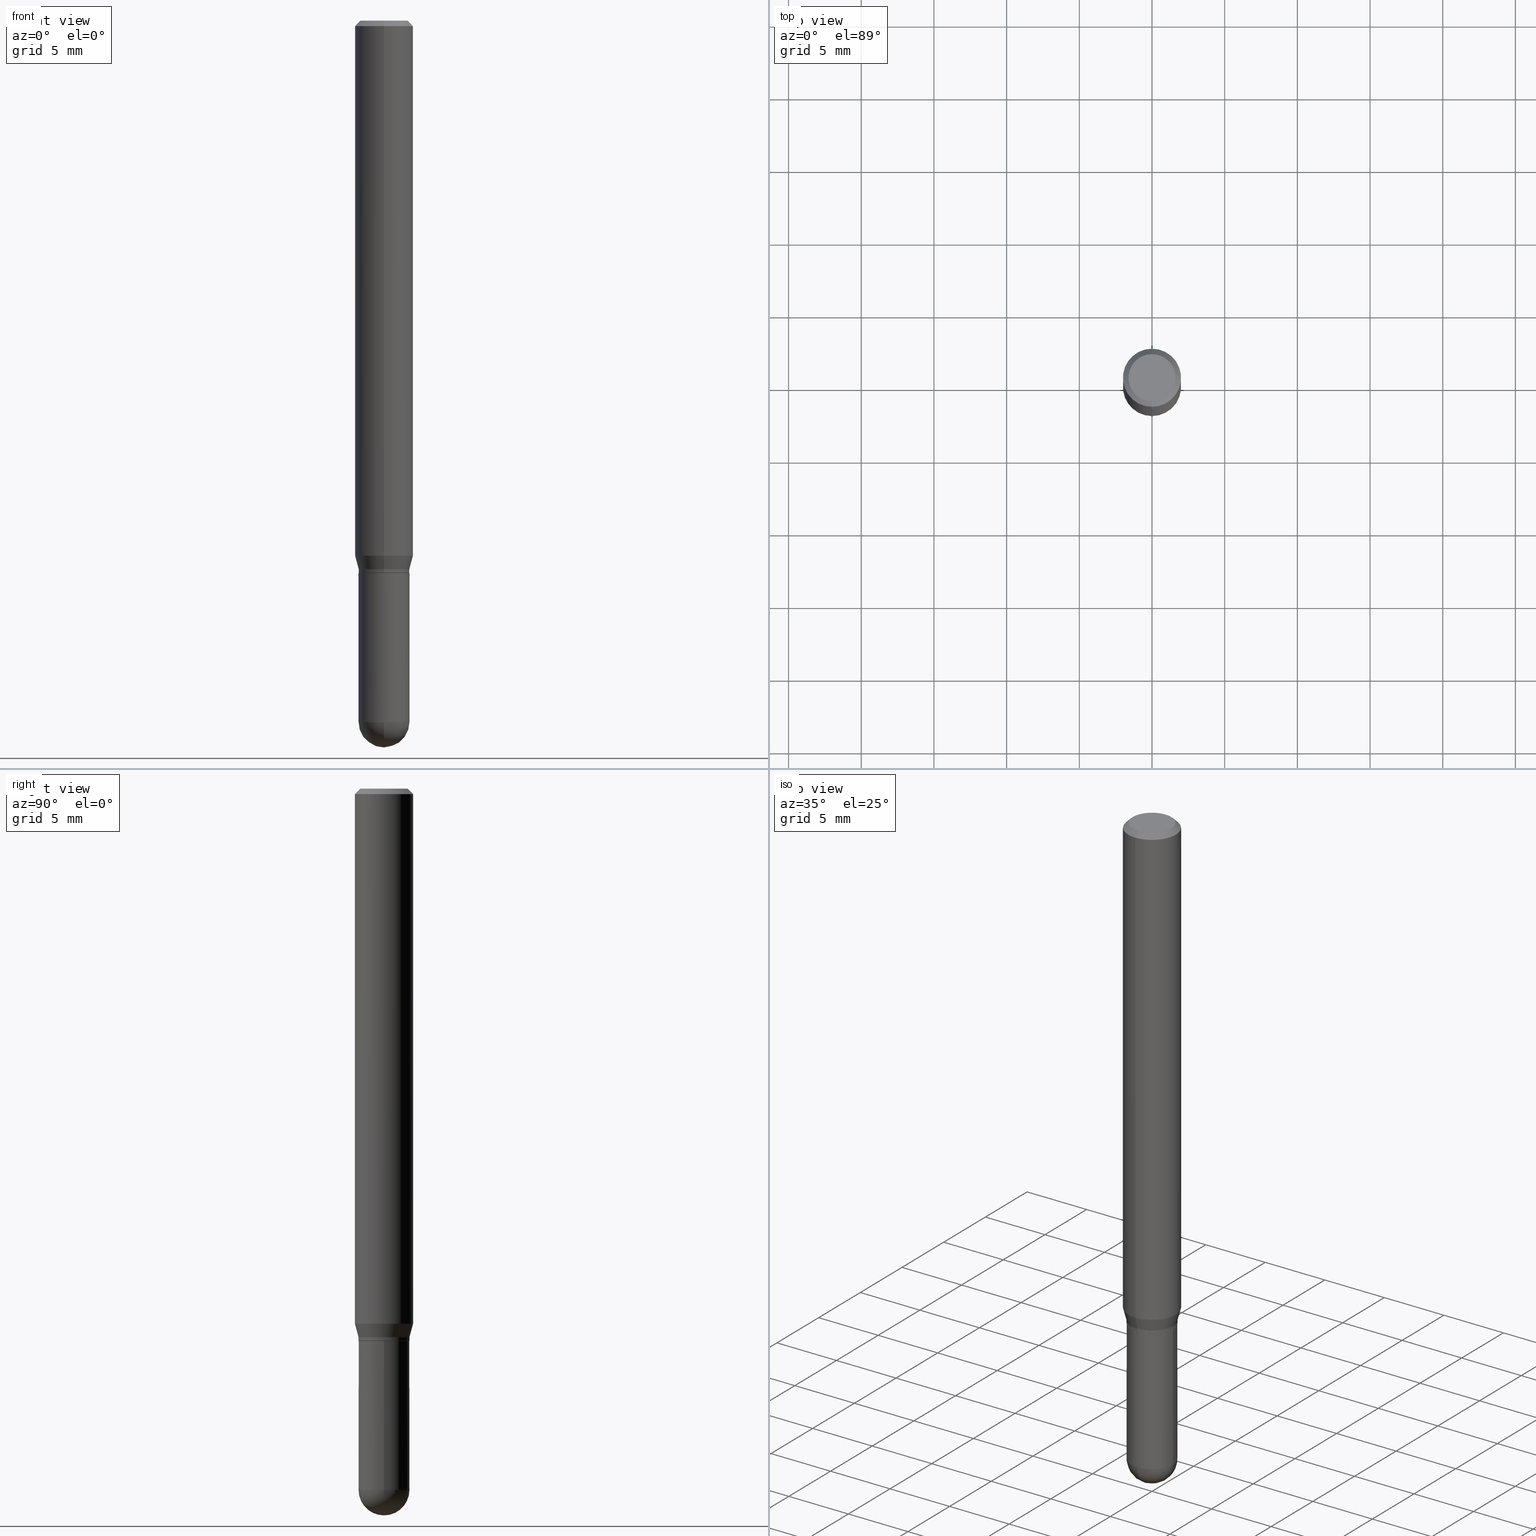
[diagram: canonical four-view strip — front | top / right | iso, engineering-drawing reading convention]
A machine part, canonical four-view strip (front | top / right | iso — engineering-drawing reading convention). The complete STEP part file that produces these views, byte-faithful:
ISO-10303-21;
HEADER;
FILE_DESCRIPTION (( 'STEP AP203' ),
    '1' );
FILE_NAME ('48825.STEP',
    '2024-03-08T13:24:39',
    ( '' ),
    ( '' ),
    'SwSTEP 2.0',
    'SolidWorks 2023',
    '' );
FILE_SCHEMA (( 'CONFIG_CONTROL_DESIGN' ));
ENDSEC;

DATA;
#1 = ORIENTED_EDGE ( 'NONE', *, *, #117, .F. ) ;
#2 = VECTOR ( 'NONE', #159, 39.37007874015748143 ) ;
#3 = DIRECTION ( 'NONE',  ( -2.445433841803367524E-29, 3.491531409827887808E-15, 1.000000000000000000 ) ) ;
#4 = FACE_OUTER_BOUND ( 'NONE', #408, .T. ) ;
#5 = EDGE_LOOP ( 'NONE', ( #330, #377, #357, #467 ) ) ;
#6 = CARTESIAN_POINT ( 'NONE',  ( 4.895639449387433642E-16, 0.06889999999999453506, -1.486100000000000199 ) ) ;
#7 = ORIENTED_EDGE ( 'NONE', *, *, #486, .T. ) ;
#8 = CIRCLE ( 'NONE', #425, 0.06890000000000007230 ) ;
#9 = CONICAL_SURFACE ( 'NONE', #314, 0.06889999999999972535, 0.2617993877991494078 ) ;
#10 = APPROVAL_PERSON_ORGANIZATION ( #36, #28, #401 ) ;
#11 = DIRECTION ( 'NONE',  ( 1.000000000000000000, -6.982962677686273021E-15, 0.000000000000000000 ) ) ;
#12 = DIRECTION ( 'NONE',  ( 2.445433841803367524E-29, -3.491531409827887808E-15, -1.000000000000000000 ) ) ;
#13 = ORIENTED_EDGE ( 'NONE', *, *, #289, .T. ) ;
#14 = DIRECTION ( 'NONE',  ( -2.445433841803367524E-29, 3.491531409827887808E-15, 1.000000000000000000 ) ) ;
#15 = EDGE_LOOP ( 'NONE', ( #503, #116, #7, #479 ) ) ;
#16 = CARTESIAN_POINT ( 'NONE',  ( 4.851357352610053575E-29, -6.819347608944073688E-15, -1.968500000000000139 ) ) ;
#17 = MECHANICAL_CONTEXT ( 'NONE', #208, 'mechanical' ) ;
#18 = LINE ( 'NONE', #306, #80 ) ;
#19 = DIRECTION ( 'NONE',  ( -1.807323732225323828E-15, -0.2588190451025172978, 0.9659258262890690894 ) ) ;
#20 = ORIENTED_EDGE ( 'NONE', *, *, #273, .T. ) ;
#21 = ADVANCED_FACE ( 'NONE', ( #72 ), #393, .T. ) ;
#22 = FACE_OUTER_BOUND ( 'NONE', #451, .T. ) ;
#23 = DIRECTION ( 'NONE',  ( -2.445433841803367243E-29, 3.491531409827887808E-15, 1.000000000000000000 ) ) ;
#24 = DIRECTION ( 'NONE',  ( -2.445468806185136597E-29, 3.491481338843145583E-15, 1.000000000000000000 ) ) ;
#25 = AXIS2_PLACEMENT_3D ( 'NONE', #445, #297, #338 ) ;
#26 = AXIS2_PLACEMENT_3D ( 'NONE', #312, #24, #275 ) ;
#27 = FACE_OUTER_BOUND ( 'NONE', #429, .T. ) ;
#28 = APPROVAL ( #249, 'UNSPECIFIED' ) ;
#29 = SECURITY_CLASSIFICATION ( '', '', #511 ) ;
#30 = EDGE_CURVE ( 'NONE', #448, #35, #205, .T. ) ;
#31 = DATE_AND_TIME ( #82, #345 ) ;
#32 = EDGE_LOOP ( 'NONE', ( #405, #111, #165, #139 ) ) ;
#33 = DIRECTION ( 'NONE',  ( -2.445433841803367524E-29, 3.491531409827887808E-15, 1.000000000000000000 ) ) ;
#34 = DIRECTION ( 'NONE',  ( -1.000000000000000000, 7.105427357601001070E-15, -4.926315508542082329E-29 ) ) ;
#35 = VERTEX_POINT ( 'NONE', #483 ) ;
#36 = PERSON_AND_ORGANIZATION ( #198, #99 ) ;
#37 = LINE ( 'NONE', #94, #304 ) ;
#38 = ORIENTED_EDGE ( 'NONE', *, *, #30, .F. ) ;
#39 = DIRECTION ( 'NONE',  ( -2.445433841803367243E-29, 3.491531409827887808E-15, 1.000000000000000000 ) ) ;
#40 = FACE_OUTER_BOUND ( 'NONE', #69, .T. ) ;
#41 = ORIENTED_EDGE ( 'NONE', *, *, #30, .T. ) ;
#42 = FACE_OUTER_BOUND ( 'NONE', #101, .T. ) ;
#43 = VECTOR ( 'NONE', #331, 39.37007874015748854 ) ;
#44 = CALENDAR_DATE ( 2024, 8, 3 ) ;
#45 = CIRCLE ( 'NONE', #240, 0.06375000000000000111 ) ;
#46 = DIRECTION ( 'NONE',  ( 5.024295867788190974E-15, 0.7071067811865681119, 0.7071067811865270336 ) ) ;
#47 = LOCAL_TIME ( 8, 24, 39.00000000000000000, #282 ) ;
#48 = ORIENTED_EDGE ( 'NONE', *, *, #217, .F. ) ;
#49 = MANIFOLD_SOLID_BREP ( 'Body-Move/Copy2[1]', #383 ) ;
#50 = DIRECTION ( 'NONE',  ( -2.445433841803367524E-29, 3.491531409827887808E-15, 1.000000000000000000 ) ) ;
#51 = DIRECTION ( 'NONE',  ( -2.445433841803367243E-29, 3.491531409827887808E-15, 1.000000000000000000 ) ) ;
#52 = PERSON_AND_ORGANIZATION_ROLE ( 'classification_officer' ) ;
#53 = DIRECTION ( 'NONE',  ( -4.937700262164674260E-15, -0.7071067811865632269, 0.7071067811865319186 ) ) ;
#54 = CYLINDRICAL_SURFACE ( 'NONE', #196, 0.06889999999999986413 ) ;
#55 = CARTESIAN_POINT ( 'NONE',  ( 0.000000000000000000, 0.000000000000000000, 0.000000000000000000 ) ) ;
#56 = EDGE_LOOP ( 'NONE', ( #1, #214, #458, #185 ) ) ;
#57 = PRODUCT_DEFINITION_SHAPE ( 'NONE', 'NONE',  #78 ) ;
#58 = DIRECTION ( 'NONE',  ( -6.982962677686266711E-15, -1.000000000000000000, 3.993929815298627073E-15 ) ) ;
#59 = LINE ( 'NONE', #154, #255 ) ;
#60 = ORIENTED_EDGE ( 'NONE', *, *, #265, .F. ) ;
#61 = CIRCLE ( 'NONE', #344, 0.06840000000000005798 ) ;
#62 = COORDINATED_UNIVERSAL_TIME_OFFSET ( 5, 0, .BEHIND. ) ;
#63 = DIRECTION ( 'NONE',  ( -2.445433841803367243E-29, 3.491531409827887808E-15, 1.000000000000000000 ) ) ;
#64 = DIRECTION ( 'NONE',  ( -2.445433841803367524E-29, 3.491531409827887808E-15, 1.000000000000000000 ) ) ;
#65 = ORIENTED_EDGE ( 'NONE', *, *, #273, .F. ) ;
#66 = CARTESIAN_POINT ( 'NONE',  ( 3.668150762705072200E-31, -5.237297114741861935E-17, -0.01500000000000008618 ) ) ;
#67 = VERTEX_POINT ( 'NONE', #142 ) ;
#68 = CALENDAR_DATE ( 2024, 8, 3 ) ;
#69 = EDGE_LOOP ( 'NONE', ( #473, #241, #261, #491 ) ) ;
#70 = AXIS2_PLACEMENT_3D ( 'NONE', #361, #203, #124 ) ;
#71 = EDGE_CURVE ( 'NONE', #92, #67, #8, .T. ) ;
#72 = FACE_OUTER_BOUND ( 'NONE', #188, .T. ) ;
#73 = CC_DESIGN_DATE_AND_TIME_ASSIGNMENT ( #31, #164, ( #29 ) ) ;
#74 = CARTESIAN_POINT ( 'NONE',  ( -4.776346471537044438E-16, -0.06840000000000528990, -1.496099999999999541 ) ) ;
#75 = PLANE ( 'NONE',  #246 ) ;
#76 = PERSON_AND_ORGANIZATION ( #198, #99 ) ;
#77 = CARTESIAN_POINT ( 'NONE',  ( 4.679918503997674770E-29, -6.583003452920844326E-15, -1.899600000000000177 ) ) ;
#78 = PRODUCT_DEFINITION ( 'UNKNOWN', '', #435, #343 ) ;
#79 = CLOSED_SHELL ( 'NONE', ( #193, #382, #512, #202, #348, #286, #169, #236, #391, #446, #438, #368 ) ) ;
#80 = VECTOR ( 'NONE', #63, 39.37007874015748143 ) ;
#81 = LOCAL_TIME ( 8, 24, 39.00000000000000000, #62 ) ;
#82 = CALENDAR_DATE ( 2024, 8, 3 ) ;
#83 = ORIENTED_EDGE ( 'NONE', *, *, #508, .T. ) ;
#84 = APPROVAL_STATUS ( 'not_yet_approved' ) ;
#85 = CYLINDRICAL_SURFACE ( 'NONE', #353, 0.06890000000000007230 ) ;
#86 = DIRECTION ( 'NONE',  ( -2.445433841803367524E-29, 3.491531409827887808E-15, 1.000000000000000000 ) ) ;
#87 = ORIENTED_EDGE ( 'NONE', *, *, #289, .F. ) ;
#88 = CIRCLE ( 'NONE', #206, 0.06890000000000007230 ) ;
#89 = CIRCLE ( 'NONE', #26, 0.06890000000000007230 ) ;
#90 = ADVANCED_FACE ( 'NONE', ( #144 ), #85, .T. ) ;
#91 = CARTESIAN_POINT ( 'NONE',  ( 0.000000000000000000, 0.000000000000000000, 0.000000000000000000 ) ) ;
#92 = VERTEX_POINT ( 'NONE', #295 ) ;
#93 = LINE ( 'NONE', #269, #365 ) ;
#94 = CARTESIAN_POINT ( 'NONE',  ( 4.860112312599455225E-16, 0.06839999999999483993, -1.496100000000000207 ) ) ;
#95 = ORIENTED_EDGE ( 'NONE', *, *, #464, .F. ) ;
#96 = EDGE_CURVE ( 'NONE', #274, #339, #155, .T. ) ;
#97 = AXIS2_PLACEMENT_3D ( 'NONE', #114, #64, #423 ) ;
#98 = DIRECTION ( 'NONE',  ( -2.445433841803367524E-29, 3.491531409827887808E-15, 1.000000000000000000 ) ) ;
#99 = ORGANIZATION ( 'UNSPECIFIED', 'UNSPECIFIED', '' ) ;
#100 = DIRECTION ( 'NONE',  ( -2.445468806185136877E-29, 3.491481338843145188E-15, 1.000000000000000000 ) ) ;
#101 = EDGE_LOOP ( 'NONE', ( #216, #60 ) ) ;
#102 = APPROVAL ( #123, 'UNSPECIFIED' ) ;
#103 = APPROVAL_DATE_TIME ( #299, #28 ) ;
#104 = CARTESIAN_POINT ( 'NONE',  ( 0.06890000000000007230, -4.811261284925842315E-16, 3.359685798523402771E-30 ) ) ;
#105 = EDGE_CURVE ( 'NONE', #245, #67, #504, .T. ) ;
#106 = CARTESIAN_POINT ( 'NONE',  ( 3.634159232303984262E-29, -5.188764828145224961E-15, -1.486099999999999977 ) ) ;
#107 = DIRECTION ( 'NONE',  ( -2.445468806185136597E-29, 3.491481338843145583E-15, 1.000000000000000000 ) ) ;
#108 = DIRECTION ( 'NONE',  ( -6.982962677686266711E-15, -1.000000000000000000, 3.964946289788496674E-15 ) ) ;
#109 = DIRECTION ( 'NONE',  ( 4.937700262164548042E-15, 0.7071067811865451302, -0.7071067811865499042 ) ) ;
#110 = AXIS2_PLACEMENT_3D ( 'NONE', #156, #263, #340 ) ;
#111 = ORIENTED_EDGE ( 'NONE', *, *, #319, .T. ) ;
#112 = DIRECTION ( 'NONE',  ( -2.445433841803367524E-29, 3.491531409827887808E-15, 1.000000000000000000 ) ) ;
#113 = CARTESIAN_POINT ( 'NONE',  ( -4.811261284925468592E-16, -0.06890000000000517932, -1.495599999999999818 ) ) ;
#114 = CARTESIAN_POINT ( 'NONE',  ( 3.657390853801116385E-29, -5.221934376538589610E-15, -1.495600000000000041 ) ) ;
#115 = ORIENTED_EDGE ( 'NONE', *, *, #375, .T. ) ;
#116 = ORIENTED_EDGE ( 'NONE', *, *, #279, .F. ) ;
#117 = EDGE_CURVE ( 'NONE', #278, #258, #182, .T. ) ;
#118 = DIRECTION ( 'NONE',  ( -6.982962677686266711E-15, -1.000000000000000000, 3.964946289788496674E-15 ) ) ;
#119 = ORIENTED_EDGE ( 'NONE', *, *, #71, .F. ) ;
#120 =( GEOMETRIC_REPRESENTATION_CONTEXT ( 3 ) GLOBAL_UNCERTAINTY_ASSIGNED_CONTEXT ( ( #226 ) ) GLOBAL_UNIT_ASSIGNED_CONTEXT ( ( #414, #379, #350 ) ) REPRESENTATION_CONTEXT ( 'NONE', 'WORKASPACE' ) );
#121 = ADVANCED_BREP_SHAPE_REPRESENTATION ( '48825', ( #49, #248, #183 ), #120 ) ;
#122 = DIRECTION ( 'NONE',  ( -6.982962677686266711E-15, -1.000000000000000000, 3.993929815298627073E-15 ) ) ;
#123 = APPROVAL_STATUS ( 'not_yet_approved' ) ;
#124 = DIRECTION ( 'NONE',  ( 1.000000000000000000, -6.982962677686273021E-15, 0.000000000000000000 ) ) ;
#125 = PERSON_AND_ORGANIZATION_ROLE ( 'creator' ) ;
#126 = VERTEX_POINT ( 'NONE', #260 ) ;
#127 = AXIS2_PLACEMENT_3D ( 'NONE', #376, #33, #210 ) ;
#128 = CIRCLE ( 'NONE', #475, 0.07874999999999997280 ) ;
#129 = CC_DESIGN_APPROVAL ( #199, ( #29 ) ) ;
#130 = PERSON_AND_ORGANIZATION ( #198, #99 ) ;
#131 = ORIENTED_EDGE ( 'NONE', *, *, #186, .T. ) ;
#132 = CARTESIAN_POINT ( 'NONE',  ( -0.06890000000000007230, -5.438447646216124813E-15, -1.496099999999999985 ) ) ;
#133 = ORIENTED_EDGE ( 'NONE', *, *, #508, .F. ) ;
#134 = ADVANCED_FACE ( 'NONE', ( #404 ), #256, .F. ) ;
#135 = DIRECTION ( 'NONE',  ( -7.105427357601001859E-15, -1.000000000000000000, 0.000000000000000000 ) ) ;
#136 = EDGE_LOOP ( 'NONE', ( #389, #501 ) ) ;
#137 = CIRCLE ( 'NONE', #384, 0.07874999999999997280 ) ;
#138 = CYLINDRICAL_SURFACE ( 'NONE', #166, 0.06889999999999986413 ) ;
#139 = ORIENTED_EDGE ( 'NONE', *, *, #96, .F. ) ;
#140 = PRODUCT ( '48825', '48825', '', ( #17 ) ) ;
#141 = EDGE_CURVE ( 'NONE', #173, #494, #363, .T. ) ;
#142 = CARTESIAN_POINT ( 'NONE',  ( -4.895639449386624073E-16, -0.06890000000000662261, -1.899599999999999955 ) ) ;
#143 = EDGE_LOOP ( 'NONE', ( #131, #83, #48, #296, #238 ) ) ;
#144 = FACE_OUTER_BOUND ( 'NONE', #455, .T. ) ;
#145 = LINE ( 'NONE', #470, #222 ) ;
#146 = ORIENTED_EDGE ( 'NONE', *, *, #403, .F. ) ;
#147 = AXIS2_PLACEMENT_3D ( 'NONE', #329, #179, #410 ) ;
#148 = CIRCLE ( 'NONE', #231, 0.06889999999999972535 ) ;
#149 = FACE_OUTER_BOUND ( 'NONE', #5, .T. ) ;
#150 = CARTESIAN_POINT ( 'NONE',  ( 3.658613570722017604E-29, -5.223680142243502750E-15, -1.496099999999999985 ) ) ;
#151 = APPLICATION_PROTOCOL_DEFINITION ( 'international standard', 'config_control_design', 1994, #420 ) ;
#152 = CC_DESIGN_DATE_AND_TIME_ASSIGNMENT ( #366, #370, ( #78 ) ) ;
#153 = DIRECTION ( 'NONE',  ( -6.982962677686266711E-15, -1.000000000000000000, 3.993929815298627073E-15 ) ) ;
#154 = CARTESIAN_POINT ( 'NONE',  ( 5.499083108677937401E-16, 0.07874999999999994504, -0.01500000000000036027 ) ) ;
#155 = CIRCLE ( 'NONE', #442, 0.07875000000000000056 ) ;
#156 = CARTESIAN_POINT ( 'NONE',  ( 3.668150762705072200E-31, -5.237297114741861935E-17, -0.01500000000000008618 ) ) ;
#157 = AXIS2_PLACEMENT_3D ( 'NONE', #160, #321, #122 ) ;
#158 = ORIENTED_EDGE ( 'NONE', *, *, #141, .F. ) ;
#159 = DIRECTION ( 'NONE',  ( -4.851104656540964275E-15, -0.7071067811865500152, -0.7071067811865450192 ) ) ;
#160 = CARTESIAN_POINT ( 'NONE',  ( 3.658613570722017604E-29, -5.223680142243502750E-15, -1.496099999999999985 ) ) ;
#161 = AXIS2_PLACEMENT_3D ( 'NONE', #406, #39, #218 ) ;
#162 = ADVANCED_FACE ( 'NONE', ( #487 ), #407, .T. ) ;
#163 = DATE_AND_TIME ( #247, #197 ) ;
#164 = DATE_TIME_ROLE ( 'classification_date' ) ;
#165 = ORIENTED_EDGE ( 'NONE', *, *, #250, .T. ) ;
#166 = AXIS2_PLACEMENT_3D ( 'NONE', #219, #493, #490 ) ;
#167 = CIRCLE ( 'NONE', #390, 0.07875000000000000056 ) ;
#168 = CARTESIAN_POINT ( 'NONE',  ( 4.645412544229285965E-29, -6.632417951266439838E-15, -1.899600000000000177 ) ) ;
#169 = ADVANCED_FACE ( 'NONE', ( #252 ), #257, .T. ) ;
#170 = EDGE_LOOP ( 'NONE', ( #437, #224 ) ) ;
#171 = DIRECTION ( 'NONE',  ( -2.445468806185136597E-29, 3.491481338843145583E-15, 1.000000000000000000 ) ) ;
#172 = DIRECTION ( 'NONE',  ( 1.000000000000000000, -6.982962677686273021E-15, 0.000000000000000000 ) ) ;
#173 = VERTEX_POINT ( 'NONE', #132 ) ;
#174 = AXIS2_PLACEMENT_3D ( 'NONE', #454, #34, #135 ) ;
#175 = CONICAL_SURFACE ( 'NONE', #157, 0.06840000000000005798, 0.7853981633974739252 ) ;
#176 = CC_DESIGN_PERSON_AND_ORGANIZATION_ASSIGNMENT ( #347, #499, ( #140 ) ) ;
#177 = DIRECTION ( 'NONE',  ( -1.000000000000000000, 6.982962677686265922E-15, -4.876176775795935793E-29 ) ) ;
#178 = CC_DESIGN_PERSON_AND_ORGANIZATION_ASSIGNMENT ( #281, #469, ( #435 ) ) ;
#179 = DIRECTION ( 'NONE',  ( -2.445468806185136597E-29, 3.491481338843145583E-15, 1.000000000000000000 ) ) ;
#180 = ORIENTED_EDGE ( 'NONE', *, *, #209, .F. ) ;
#181 = CARTESIAN_POINT ( 'NONE',  ( 4.895639449387457308E-16, 0.06889999999999479874, -1.495600000000000263 ) ) ;
#182 = CIRCLE ( 'NONE', #127, 0.06375000000000000111 ) ;
#183 = AXIS2_PLACEMENT_3D ( 'NONE', #55, #276, #431 ) ;
#184 = FACE_OUTER_BOUND ( 'NONE', #484, .T. ) ;
#185 = ORIENTED_EDGE ( 'NONE', *, *, #486, .F. ) ;
#186 = EDGE_CURVE ( 'NONE', #126, #92, #320, .T. ) ;
#187 = FACE_OUTER_BOUND ( 'NONE', #15, .T. ) ;
#188 = EDGE_LOOP ( 'NONE', ( #397, #471, #119, #283 ) ) ;
#189 = PRODUCT_RELATED_PRODUCT_CATEGORY ( 'detail', '', ( #140 ) ) ;
#190 = CARTESIAN_POINT ( 'NONE',  ( 4.679918503997674770E-29, -6.583003452920844326E-15, -1.899600000000000177 ) ) ;
#191 = FACE_OUTER_BOUND ( 'NONE', #56, .T. ) ;
#192 = DIMENSIONAL_EXPONENTS ( 1.000000000000000000, 0.000000000000000000, 0.000000000000000000, 0.000000000000000000, 0.000000000000000000, 0.000000000000000000, 0.000000000000000000 ) ;
#193 = ADVANCED_FACE ( 'NONE', ( #40 ), #138, .T. ) ;
#194 = AXIS2_PLACEMENT_3D ( 'NONE', #290, #223, #177 ) ;
#195 = DIRECTION ( 'NONE',  ( -2.445433841803367524E-29, 3.491531409827887808E-15, 1.000000000000000000 ) ) ;
#196 = AXIS2_PLACEMENT_3D ( 'NONE', #228, #239, #392 ) ;
#197 = LOCAL_TIME ( 8, 24, 39.00000000000000000, #220 ) ;
#198 = PERSON ( 'UNSPECIFIED', 'UNSPECIFIED', 'UNSPECIFIED', ('UNSPECIFIED'), ('UNSPECIFIED'), ('UNSPECIFIED') ) ;
#199 = APPROVAL ( #84, 'UNSPECIFIED' ) ;
#200 = CARTESIAN_POINT ( 'NONE',  ( 3.634159232303984262E-29, -5.188764828145224961E-15, -1.486099999999999977 ) ) ;
#201 = SHAPE_DEFINITION_REPRESENTATION ( #57, #121 ) ;
#202 = ADVANCED_FACE ( 'NONE', ( #4 ), #447, .T. ) ;
#203 = DIRECTION ( 'NONE',  ( -2.445468806185136597E-29, 3.491481338843145583E-15, 1.000000000000000000 ) ) ;
#204 = COORDINATED_UNIVERSAL_TIME_OFFSET ( 5, 0, .BEHIND. ) ;
#205 = LINE ( 'NONE', #6, #43 ) ;
#206 = AXIS2_PLACEMENT_3D ( 'NONE', #367, #171, #172 ) ;
#207 = AXIS2_PLACEMENT_3D ( 'NONE', #200, #242, #118 ) ;
#208 = APPLICATION_CONTEXT ( 'configuration controlled 3d designs of mechanical parts and assemblies' ) ;
#209 = EDGE_CURVE ( 'NONE', #394, #317, #37, .T. ) ;
#210 = DIRECTION ( 'NONE',  ( -6.982962677686264344E-15, -1.000000000000000000, 3.491531409827887019E-15 ) ) ;
#211 = CONICAL_SURFACE ( 'NONE', #322, 0.07875000000000000056, 0.7853981633974483900 ) ;
#212 = CC_DESIGN_PERSON_AND_ORGANIZATION_ASSIGNMENT ( #417, #52, ( #29 ) ) ;
#213 = DIRECTION ( 'NONE',  ( -6.982962677686265922E-15, -1.000000000000000000, 3.491531409827888596E-15 ) ) ;
#214 = ORIENTED_EDGE ( 'NONE', *, *, #421, .T. ) ;
#215 = CARTESIAN_POINT ( 'NONE',  ( 0.000000000000000000, 0.000000000000000000, 0.000000000000000000 ) ) ;
#216 = ORIENTED_EDGE ( 'NONE', *, *, #324, .F. ) ;
#217 = EDGE_CURVE ( 'NONE', #494, #173, #88, .T. ) ;
#218 = DIRECTION ( 'NONE',  ( -6.982962677686265922E-15, -1.000000000000000000, 3.491531409827887808E-15 ) ) ;
#219 = CARTESIAN_POINT ( 'NONE',  ( 0.000000000000000000, 0.000000000000000000, 0.000000000000000000 ) ) ;
#220 = COORDINATED_UNIVERSAL_TIME_OFFSET ( 5, 0, .BEHIND. ) ;
#221 = CC_DESIGN_PERSON_AND_ORGANIZATION_ASSIGNMENT ( #76, #396, ( #78 ) ) ;
#222 = VECTOR ( 'NONE', #19, 39.37007874015748854 ) ;
#223 = DIRECTION ( 'NONE',  ( 2.438088387897960049E-29, -3.491481338843145188E-15, -1.000000000000000000 ) ) ;
#224 = ORIENTED_EDGE ( 'NONE', *, *, #141, .T. ) ;
#225 = LINE ( 'NONE', #498, #450 ) ;
#226 = UNCERTAINTY_MEASURE_WITH_UNIT (LENGTH_MEASURE( 1.000000000000000082E-05 ), #414, 'distance_accuracy_value', 'NONE');
#227 = EDGE_CURVE ( 'NONE', #317, #264, #509, .T. ) ;
#228 = CARTESIAN_POINT ( 'NONE',  ( 0.000000000000000000, 0.000000000000000000, 0.000000000000000000 ) ) ;
#229 = APPLICATION_PROTOCOL_DEFINITION ( 'international standard', 'config_control_design', 1994, #208 ) ;
#230 = AXIS2_PLACEMENT_3D ( 'NONE', #215, #3, #335 ) ;
#231 = AXIS2_PLACEMENT_3D ( 'NONE', #106, #268, #237 ) ;
#232 = DIRECTION ( 'NONE',  ( -6.982962677686266711E-15, -1.000000000000000000, 3.964946289788496674E-15 ) ) ;
#233 = CARTESIAN_POINT ( 'NONE',  ( 3.668150762705072200E-31, -5.237297114741861935E-17, -0.01500000000000008618 ) ) ;
#234 = EDGE_LOOP ( 'NONE', ( #180, #327, #254, #489 ) ) ;
#235 = DIRECTION ( 'NONE',  ( -6.982962677686265922E-15, -1.000000000000000000, 3.469013325287954477E-15 ) ) ;
#236 = ADVANCED_FACE ( 'NONE', ( #187 ), #412, .T. ) ;
#237 = DIRECTION ( 'NONE',  ( -6.982962677686266711E-15, -1.000000000000000000, 3.964946289788496674E-15 ) ) ;
#238 = ORIENTED_EDGE ( 'NONE', *, *, #403, .T. ) ;
#239 = DIRECTION ( 'NONE',  ( -2.445433841803367524E-29, 3.491531409827887808E-15, 1.000000000000000000 ) ) ;
#240 = AXIS2_PLACEMENT_3D ( 'NONE', #422, #98, #380 ) ;
#241 = ORIENTED_EDGE ( 'NONE', *, *, #497, .T. ) ;
#242 = DIRECTION ( 'NONE',  ( -2.445433841803367524E-29, 3.491531409827887808E-15, 1.000000000000000000 ) ) ;
#243 = DIRECTION ( 'NONE',  ( 2.445433841803367243E-29, -3.491531409827887808E-15, -1.000000000000000000 ) ) ;
#244 = ORIENTED_EDGE ( 'NONE', *, *, #332, .F. ) ;
#245 = VERTEX_POINT ( 'NONE', #16 ) ;
#246 = AXIS2_PLACEMENT_3D ( 'NONE', #280, #243, #395 ) ;
#247 = CALENDAR_DATE ( 2024, 8, 3 ) ;
#248 = MANIFOLD_SOLID_BREP ( 'Body-Move/Copy2[2]', #79 ) ;
#249 = APPROVAL_STATUS ( 'not_yet_approved' ) ;
#250 = EDGE_CURVE ( 'NONE', #351, #339, #18, .T. ) ;
#251 = COORDINATED_UNIVERSAL_TIME_OFFSET ( 5, 0, .BEHIND. ) ;
#252 = FACE_OUTER_BOUND ( 'NONE', #32, .T. ) ;
#253 = DIRECTION ( 'NONE',  ( -2.445433841803367524E-29, 3.491531409827887808E-15, 1.000000000000000000 ) ) ;
#254 = ORIENTED_EDGE ( 'NONE', *, *, #432, .T. ) ;
#255 = VECTOR ( 'NONE', #109, 39.37007874015748143 ) ;
#256 = PLANE ( 'NONE',  #194 ) ;
#257 = CYLINDRICAL_SURFACE ( 'NONE', #230, 0.07874999999999997280 ) ;
#258 = VERTEX_POINT ( 'NONE', #316 ) ;
#259 = DIRECTION ( 'NONE',  ( -6.982962677686266711E-15, -1.000000000000000000, 3.993929815298627073E-15 ) ) ;
#260 = CARTESIAN_POINT ( 'NONE',  ( 4.811261284926304785E-16, 0.06889999999999341096, -1.899600000000000399 ) ) ;
#261 = ORIENTED_EDGE ( 'NONE', *, *, #337, .F. ) ;
#262 = AXIS2_PLACEMENT_3D ( 'NONE', #77, #477, #400 ) ;
#263 = DIRECTION ( 'NONE',  ( 2.445433841803367524E-29, -3.491531409827887808E-15, -1.000000000000000000 ) ) ;
#264 = VERTEX_POINT ( 'NONE', #113 ) ;
#265 = EDGE_CURVE ( 'NONE', #394, #369, #61, .T. ) ;
#266 = DIRECTION ( 'NONE',  ( -2.445433841803367524E-29, 3.491531409827887808E-15, 1.000000000000000000 ) ) ;
#267 =( LENGTH_UNIT ( ) NAMED_UNIT ( * ) SI_UNIT ( $, .METRE. ) );
#268 = DIRECTION ( 'NONE',  ( -2.445433841803367524E-29, 3.491531409827887808E-15, 1.000000000000000000 ) ) ;
#269 = CARTESIAN_POINT ( 'NONE',  ( -4.811261284925827524E-16, -0.06889999999999986413, 2.405665141371410020E-16 ) ) ;
#270 = AXIS2_PLACEMENT_3D ( 'NONE', #190, #300, #459 ) ;
#271 = CARTESIAN_POINT ( 'NONE',  ( 3.544263371364020431E-29, -5.060413687860873345E-15, -1.449339299545445714 ) ) ;
#272 = CARTESIAN_POINT ( 'NONE',  ( 0.000000000000000000, 0.000000000000000000, 0.000000000000000000 ) ) ;
#273 = EDGE_CURVE ( 'NONE', #67, #302, #89, .T. ) ;
#274 = VERTEX_POINT ( 'NONE', #495 ) ;
#275 = DIRECTION ( 'NONE',  ( 1.000000000000000000, -6.982962677686273021E-15, 0.000000000000000000 ) ) ;
#276 = DIRECTION ( 'NONE',  ( 0.000000000000000000, 0.000000000000000000, 1.000000000000000000 ) ) ;
#277 = ORIENTED_EDGE ( 'NONE', *, *, #250, .F. ) ;
#278 = VERTEX_POINT ( 'NONE', #430 ) ;
#279 = EDGE_CURVE ( 'NONE', #258, #278, #45, .T. ) ;
#280 = CARTESIAN_POINT ( 'NONE',  ( 4.451638707024993845E-16, 0.06375000000000000111, -2.657199956650864674E-16 ) ) ;
#281 = PERSON_AND_ORGANIZATION ( #198, #99 ) ;
#282 = COORDINATED_UNIVERSAL_TIME_OFFSET ( 5, 0, .BEHIND. ) ;
#283 = ORIENTED_EDGE ( 'NONE', *, *, #186, .F. ) ;
#284 = ORIENTED_EDGE ( 'NONE', *, *, #303, .T. ) ;
#285 = AXIS2_PLACEMENT_3D ( 'NONE', #492, #112, #259 ) ;
#286 = ADVANCED_FACE ( 'NONE', ( #184 ), #9, .T. ) ;
#287 = ORIENTED_EDGE ( 'NONE', *, *, #464, .T. ) ;
#288 = DIRECTION ( 'NONE',  ( 1.000000000000000000, -6.982962677686273021E-15, 0.000000000000000000 ) ) ;
#289 = EDGE_CURVE ( 'NONE', #351, #35, #137, .T. ) ;
#290 = CARTESIAN_POINT ( 'NONE',  ( 4.811261284926208150E-16, 0.06889999999999484037, -1.496100000000000207 ) ) ;
#291 = ORIENTED_EDGE ( 'NONE', *, *, #432, .F. ) ;
#292 = AXIS2_PLACEMENT_3D ( 'NONE', #333, #346, #468 ) ;
#293 = VECTOR ( 'NONE', #387, 39.37007874015748143 ) ;
#294 = CARTESIAN_POINT ( 'NONE',  ( -4.776346471537044438E-16, -0.06840000000000528990, -1.496099999999999541 ) ) ;
#295 = CARTESIAN_POINT ( 'NONE',  ( -0.06890000000000008618, -5.438447646216124813E-15, -1.899600000000000177 ) ) ;
#296 = ORIENTED_EDGE ( 'NONE', *, *, #303, .F. ) ;
#297 = DIRECTION ( 'NONE',  ( -1.000000000000000000, 6.982962677686265922E-15, -4.883557194083112901E-29 ) ) ;
#298 = ORIENTED_EDGE ( 'NONE', *, *, #209, .T. ) ;
#299 = DATE_AND_TIME ( #44, #81 ) ;
#300 = DIRECTION ( 'NONE',  ( 1.000000000000000000, -6.982962677686265922E-15, 4.883557194083112340E-29 ) ) ;
#301 = LINE ( 'NONE', #460, #480 ) ;
#302 = VERTEX_POINT ( 'NONE', #427 ) ;
#303 = EDGE_CURVE ( 'NONE', #302, #494, #413, .T. ) ;
#304 = VECTOR ( 'NONE', #46, 39.37007874015748143 ) ;
#305 = CIRCLE ( 'NONE', #207, 0.06889999999999972535 ) ;
#306 = CARTESIAN_POINT ( 'NONE',  ( -5.499083108677932471E-16, -0.07874999999999997280, 2.749580985239461215E-16 ) ) ;
#307 = LENGTH_MEASURE_WITH_UNIT ( LENGTH_MEASURE( 0.02539999999999999897 ), #267 );
#308 = DIRECTION ( 'NONE',  ( -2.445433841803367243E-29, 3.491531409827887808E-15, 1.000000000000000000 ) ) ;
#309 = PERSON_AND_ORGANIZATION ( #198, #99 ) ;
#310 = ORIENTED_EDGE ( 'NONE', *, *, #71, .T. ) ;
#311 = EDGE_CURVE ( 'NONE', #35, #274, #225, .T. ) ;
#312 = CARTESIAN_POINT ( 'NONE',  ( 4.645412544229285965E-29, -6.632417951266439838E-15, -1.899600000000000177 ) ) ;
#313 = FACE_OUTER_BOUND ( 'NONE', #143, .T. ) ;
#314 = AXIS2_PLACEMENT_3D ( 'NONE', #466, #195, #108 ) ;
#315 = CC_DESIGN_APPROVAL ( #102, ( #78 ) ) ;
#316 = CARTESIAN_POINT ( 'NONE',  ( 4.975360907851465623E-16, 0.06375000000000000111, -3.088548639536449766E-16 ) ) ;
#317 = VERTEX_POINT ( 'NONE', #181 ) ;
#318 = APPROVAL_ROLE ( '' ) ;
#319 = EDGE_CURVE ( 'NONE', #35, #351, #128, .T. ) ;
#320 = CIRCLE ( 'NONE', #326, 0.06890000000000007230 ) ;
#321 = DIRECTION ( 'NONE',  ( -2.445433841803367524E-29, 3.491531409827887808E-15, 1.000000000000000000 ) ) ;
#322 = AXIS2_PLACEMENT_3D ( 'NONE', #233, #12, #381 ) ;
#323 = CARTESIAN_POINT ( 'NONE',  ( 4.877875880993454787E-16, 0.06839999999999483993, -1.496100000000000207 ) ) ;
#324 = EDGE_CURVE ( 'NONE', #369, #394, #398, .T. ) ;
#325 = CALENDAR_DATE ( 2024, 8, 3 ) ;
#326 = AXIS2_PLACEMENT_3D ( 'NONE', #168, #409, #288 ) ;
#327 = ORIENTED_EDGE ( 'NONE', *, *, #265, .T. ) ;
#328 = CIRCLE ( 'NONE', #270, 0.06889999999999996128 ) ;
#329 = CARTESIAN_POINT ( 'NONE',  ( 3.658665880933582389E-29, -5.223605231043229660E-15, -1.496099999999999985 ) ) ;
#330 = ORIENTED_EDGE ( 'NONE', *, *, #497, .F. ) ;
#331 = DIRECTION ( 'NONE',  ( 1.839019923739594004E-15, 0.2588190451025240701, 0.9659258262890673130 ) ) ;
#332 = EDGE_CURVE ( 'NONE', #339, #274, #167, .T. ) ;
#333 = CARTESIAN_POINT ( 'NONE',  ( 3.657390853801116385E-29, -5.221934376538589610E-15, -1.495600000000000041 ) ) ;
#334 = CIRCLE ( 'NONE', #97, 0.06889999999999998903 ) ;
#335 = DIRECTION ( 'NONE',  ( -6.982962677686265922E-15, -1.000000000000000000, 3.491531409827888596E-15 ) ) ;
#336 = EDGE_LOOP ( 'NONE', ( #481, #411, #146, #65 ) ) ;
#337 = EDGE_CURVE ( 'NONE', #362, #448, #148, .T. ) ;
#338 = DIRECTION ( 'NONE',  ( 6.982962677686265922E-15, 1.000000000000000000, -3.964946289788482474E-15 ) ) ;
#339 = VERTEX_POINT ( 'NONE', #502 ) ;
#340 = DIRECTION ( 'NONE',  ( 6.982962677686264344E-15, 1.000000000000000000, -3.496114991891765576E-15 ) ) ;
#341 = DIRECTION ( 'NONE',  ( 1.000000000000000000, -6.982962677686265922E-15, 4.876176775795935232E-29 ) ) ;
#342 = CC_DESIGN_PERSON_AND_ORGANIZATION_ASSIGNMENT ( #418, #125, ( #435 ) ) ;
#343 = DESIGN_CONTEXT ( 'detailed design', #420, 'design' ) ;
#344 = AXIS2_PLACEMENT_3D ( 'NONE', #349, #500, #153 ) ;
#345 = LOCAL_TIME ( 8, 24, 39.00000000000000000, #251 ) ;
#346 = DIRECTION ( 'NONE',  ( -2.445433841803367524E-29, 3.491531409827887808E-15, 1.000000000000000000 ) ) ;
#347 = PERSON_AND_ORGANIZATION ( #198, #99 ) ;
#348 = ADVANCED_FACE ( 'NONE', ( #22 ), #359, .T. ) ;
#349 = CARTESIAN_POINT ( 'NONE',  ( 3.658613570722017604E-29, -5.223680142243502750E-15, -1.496099999999999985 ) ) ;
#350 =( NAMED_UNIT ( * ) SI_UNIT ( $, .STERADIAN. ) SOLID_ANGLE_UNIT ( ) );
#351 = VERTEX_POINT ( 'NONE', #385 ) ;
#352 = CARTESIAN_POINT ( 'NONE',  ( 3.544263371364020431E-29, -5.060413687860873345E-15, -1.449339299545445714 ) ) ;
#353 = AXIS2_PLACEMENT_3D ( 'NONE', #449, #364, #402 ) ;
#354 = VECTOR ( 'NONE', #51, 39.37007874015748143 ) ;
#355 = LOCAL_TIME ( 8, 24, 39.00000000000000000, #204 ) ;
#356 = DIRECTION ( 'NONE',  ( -6.982962677686265922E-15, -1.000000000000000000, 3.469013325287954477E-15 ) ) ;
#357 = ORIENTED_EDGE ( 'NONE', *, *, #453, .T. ) ;
#358 = LINE ( 'NONE', #478, #2 ) ;
#359 = CONICAL_SURFACE ( 'NONE', #426, 0.06889999999999972535, 0.2617993877991494078 ) ;
#360 = EDGE_CURVE ( 'NONE', #245, #126, #328, .T. ) ;
#361 = CARTESIAN_POINT ( 'NONE',  ( 4.645412544229285965E-29, -6.632417951266439838E-15, -1.899600000000000177 ) ) ;
#362 = VERTEX_POINT ( 'NONE', #378 ) ;
#363 = CIRCLE ( 'NONE', #147, 0.06890000000000007230 ) ;
#364 = DIRECTION ( 'NONE',  ( -2.445468806185136597E-29, 3.491481338843145583E-15, 1.000000000000000000 ) ) ;
#365 = VECTOR ( 'NONE', #23, 39.37007874015748143 ) ;
#366 = DATE_AND_TIME ( #325, #355 ) ;
#367 = CARTESIAN_POINT ( 'NONE',  ( 3.658665880933582389E-29, -5.223605231043229660E-15, -1.496099999999999985 ) ) ;
#368 = ADVANCED_FACE ( 'NONE', ( #149 ), #54, .T. ) ;
#369 = VERTEX_POINT ( 'NONE', #74 ) ;
#370 = DATE_TIME_ROLE ( 'creation_date' ) ;
#371 = DIRECTION ( 'NONE',  ( -2.445468806185136597E-29, 3.491481338843145583E-15, 1.000000000000000000 ) ) ;
#372 = CARTESIAN_POINT ( 'NONE',  ( 3.668150762705072200E-31, -5.237297114741861935E-17, -0.01500000000000008618 ) ) ;
#373 = AXIS2_PLACEMENT_3D ( 'NONE', #150, #266, #58 ) ;
#374 = APPROVAL_PERSON_ORGANIZATION ( #309, #102, #318 ) ;
#375 = EDGE_CURVE ( 'NONE', #448, #362, #305, .T. ) ;
#376 = CARTESIAN_POINT ( 'NONE',  ( 2.109669333491442099E-45, -3.012134949765825103E-31, -8.626973657711720330E-17 ) ) ;
#377 = ORIENTED_EDGE ( 'NONE', *, *, #227, .T. ) ;
#378 = CARTESIAN_POINT ( 'NONE',  ( -4.811261284925454787E-16, -0.06890000000000491565, -1.486099999999999755 ) ) ;
#379 =( NAMED_UNIT ( * ) PLANE_ANGLE_UNIT ( ) SI_UNIT ( $, .RADIAN. ) );
#380 = DIRECTION ( 'NONE',  ( -6.982962677686264344E-15, -1.000000000000000000, 3.491531409827887019E-15 ) ) ;
#381 = DIRECTION ( 'NONE',  ( 6.982962677686264344E-15, 1.000000000000000000, -3.496114991891765576E-15 ) ) ;
#382 = ADVANCED_FACE ( 'NONE', ( #27 ), #175, .T. ) ;
#383 = CLOSED_SHELL ( 'NONE', ( #482, #21, #134, #162, #90 ) ) ;
#384 = AXIS2_PLACEMENT_3D ( 'NONE', #271, #14, #235 ) ;
#385 = CARTESIAN_POINT ( 'NONE',  ( -5.499083108677578469E-16, -0.07875000000000501044, -1.449339299545445270 ) ) ;
#386 = ORIENTED_EDGE ( 'NONE', *, *, #319, .F. ) ;
#387 = DIRECTION ( 'NONE',  ( -2.445468806185136877E-29, 3.491481338843145188E-15, 1.000000000000000000 ) ) ;
#388 = CARTESIAN_POINT ( 'NONE',  ( 4.895639449387079640E-16, 0.06889999999999986413, -2.405665141371410020E-16 ) ) ;
#389 = ORIENTED_EDGE ( 'NONE', *, *, #279, .T. ) ;
#390 = AXIS2_PLACEMENT_3D ( 'NONE', #66, #50, #465 ) ;
#391 = ADVANCED_FACE ( 'NONE', ( #510 ), #75, .F. ) ;
#392 = DIRECTION ( 'NONE',  ( -6.982962677686265922E-15, -1.000000000000000000, 3.491531409827887808E-15 ) ) ;
#393 = SPHERICAL_SURFACE ( 'NONE', #262, 0.06889999999999996128 ) ;
#394 = VERTEX_POINT ( 'NONE', #323 ) ;
#395 = DIRECTION ( 'NONE',  ( 6.982962677686265922E-15, 1.000000000000000000, -3.491531409827887808E-15 ) ) ;
#396 = PERSON_AND_ORGANIZATION_ROLE ( 'creator' ) ;
#397 = ORIENTED_EDGE ( 'NONE', *, *, #360, .F. ) ;
#398 = CIRCLE ( 'NONE', #373, 0.06840000000000005798 ) ;
#399 = APPROVAL_PERSON_ORGANIZATION ( #130, #199, #472 ) ;
#400 = DIRECTION ( 'NONE',  ( 6.982962677686265922E-15, 1.000000000000000000, -3.964946289788482474E-15 ) ) ;
#401 = APPROVAL_ROLE ( '' ) ;
#402 = DIRECTION ( 'NONE',  ( 1.000000000000000000, -6.982962677686265922E-15, 4.876176775795935232E-29 ) ) ;
#403 = EDGE_CURVE ( 'NONE', #302, #126, #488, .T. ) ;
#404 = FACE_OUTER_BOUND ( 'NONE', #170, .T. ) ;
#405 = ORIENTED_EDGE ( 'NONE', *, *, #311, .F. ) ;
#406 = CARTESIAN_POINT ( 'NONE',  ( 3.658613570722017604E-29, -5.223680142243502750E-15, -1.496099999999999985 ) ) ;
#407 = SPHERICAL_SURFACE ( 'NONE', #25, 0.06889999999999996128 ) ;
#408 = EDGE_LOOP ( 'NONE', ( #13, #424, #244, #277 ) ) ;
#409 = DIRECTION ( 'NONE',  ( -2.445468806185136597E-29, 3.491481338843145583E-15, 1.000000000000000000 ) ) ;
#410 = DIRECTION ( 'NONE',  ( 1.000000000000000000, -6.982962677686273021E-15, 0.000000000000000000 ) ) ;
#411 = ORIENTED_EDGE ( 'NONE', *, *, #360, .T. ) ;
#412 = CONICAL_SURFACE ( 'NONE', #110, 0.07875000000000000056, 0.7853981633974483900 ) ;
#413 = LINE ( 'NONE', #104, #293 ) ;
#414 =( CONVERSION_BASED_UNIT ( 'INCH', #307 ) LENGTH_UNIT ( ) NAMED_UNIT ( #192 ) );
#415 = ORIENTED_EDGE ( 'NONE', *, *, #474, .F. ) ;
#416 = PLANE ( 'NONE',  #161 ) ;
#417 = PERSON_AND_ORGANIZATION ( #198, #99 ) ;
#418 = PERSON_AND_ORGANIZATION ( #198, #99 ) ;
#419 = CARTESIAN_POINT ( 'NONE',  ( 3.634159232303984262E-29, -5.188764828145224961E-15, -1.486099999999999977 ) ) ;
#420 = APPLICATION_CONTEXT ( 'configuration controlled 3d designs of mechanical parts and assemblies' ) ;
#421 = EDGE_CURVE ( 'NONE', #278, #339, #358, .T. ) ;
#422 = CARTESIAN_POINT ( 'NONE',  ( 2.109669333491442099E-45, -3.012134949765825103E-31, -8.626973657711720330E-17 ) ) ;
#423 = DIRECTION ( 'NONE',  ( -6.982962677686265922E-15, -1.000000000000000000, 3.964946289788481685E-15 ) ) ;
#424 = ORIENTED_EDGE ( 'NONE', *, *, #311, .T. ) ;
#425 = AXIS2_PLACEMENT_3D ( 'NONE', #485, #371, #11 ) ;
#426 = AXIS2_PLACEMENT_3D ( 'NONE', #419, #506, #232 ) ;
#427 = CARTESIAN_POINT ( 'NONE',  ( 0.06890000000000008618, -6.409137719647418882E-15, -1.899600000000000177 ) ) ;
#428 = LINE ( 'NONE', #388, #354 ) ;
#429 = EDGE_LOOP ( 'NONE', ( #440, #298, #415, #291 ) ) ;
#430 = CARTESIAN_POINT ( 'NONE',  ( -4.888104823412213911E-16, -0.06375000000000000111, 1.363153907994106193E-16 ) ) ;
#431 = DIRECTION ( 'NONE',  ( 1.000000000000000000, 0.000000000000000000, 0.000000000000000000 ) ) ;
#432 = EDGE_CURVE ( 'NONE', #369, #264, #441, .T. ) ;
#433 = AXIS2_PLACEMENT_3D ( 'NONE', #91, #86, #213 ) ;
#434 = AXIS2_PLACEMENT_3D ( 'NONE', #272, #107, #341 ) ;
#435 = PRODUCT_DEFINITION_FORMATION_WITH_SPECIFIED_SOURCE ( 'ANY', '', #140, .NOT_KNOWN. ) ;
#436 = DATE_AND_TIME ( #68, #47 ) ;
#437 = ORIENTED_EDGE ( 'NONE', *, *, #217, .T. ) ;
#438 = ADVANCED_FACE ( 'NONE', ( #452 ), #505, .T. ) ;
#439 = APPROVAL_DATE_TIME ( #436, #102 ) ;
#440 = ORIENTED_EDGE ( 'NONE', *, *, #324, .T. ) ;
#441 = LINE ( 'NONE', #294, #443 ) ;
#442 = AXIS2_PLACEMENT_3D ( 'NONE', #372, #253, #457 ) ;
#443 = VECTOR ( 'NONE', #53, 39.37007874015748143 ) ;
#444 = APPROVAL_DATE_TIME ( #163, #199 ) ;
#445 = CARTESIAN_POINT ( 'NONE',  ( 4.679918503997674770E-29, -6.583003452920844326E-15, -1.899600000000000177 ) ) ;
#446 = ADVANCED_FACE ( 'NONE', ( #42 ), #416, .F. ) ;
#447 = CYLINDRICAL_SURFACE ( 'NONE', #433, 0.07874999999999997280 ) ;
#448 = VERTEX_POINT ( 'NONE', #456 ) ;
#449 = CARTESIAN_POINT ( 'NONE',  ( 0.000000000000000000, 0.000000000000000000, 0.000000000000000000 ) ) ;
#450 = VECTOR ( 'NONE', #308, 39.37007874015748143 ) ;
#451 = EDGE_LOOP ( 'NONE', ( #507, #41, #87, #95 ) ) ;
#452 = FACE_OUTER_BOUND ( 'NONE', #234, .T. ) ;
#453 = EDGE_CURVE ( 'NONE', #264, #362, #93, .T. ) ;
#454 = CARTESIAN_POINT ( 'NONE',  ( 4.679918503997674770E-29, -6.583003452920844326E-15, -1.899600000000000177 ) ) ;
#455 = EDGE_LOOP ( 'NONE', ( #133, #310, #20, #284, #158 ) ) ;
#456 = CARTESIAN_POINT ( 'NONE',  ( 5.245581746749287830E-16, 0.06889999999999453506, -1.486100000000000199 ) ) ;
#457 = DIRECTION ( 'NONE',  ( -6.982962677686264344E-15, -1.000000000000000000, 3.496114991891765576E-15 ) ) ;
#458 = ORIENTED_EDGE ( 'NONE', *, *, #332, .T. ) ;
#459 = DIRECTION ( 'NONE',  ( 6.982962677686265922E-15, 1.000000000000000000, 0.000000000000000000 ) ) ;
#460 = CARTESIAN_POINT ( 'NONE',  ( -0.06890000000000007230, 4.895639449387095418E-16, -3.389146277185633520E-30 ) ) ;
#461 = CC_DESIGN_APPROVAL ( #28, ( #435 ) ) ;
#462 = DIRECTION ( 'NONE',  ( -2.445433841803367524E-29, 3.491531409827887808E-15, 1.000000000000000000 ) ) ;
#463 = CARTESIAN_POINT ( 'NONE',  ( 0.06890000000000007230, -5.704731359535814187E-15, -1.496099999999999985 ) ) ;
#464 = EDGE_CURVE ( 'NONE', #362, #351, #145, .T. ) ;
#465 = DIRECTION ( 'NONE',  ( -6.982962677686264344E-15, -1.000000000000000000, 3.496114991891765576E-15 ) ) ;
#466 = CARTESIAN_POINT ( 'NONE',  ( 3.634159232303984262E-29, -5.188764828145224961E-15, -1.486099999999999977 ) ) ;
#467 = ORIENTED_EDGE ( 'NONE', *, *, #375, .F. ) ;
#468 = DIRECTION ( 'NONE',  ( -6.982962677686265922E-15, -1.000000000000000000, 3.964946289788481685E-15 ) ) ;
#469 = PERSON_AND_ORGANIZATION_ROLE ( 'design_supplier' ) ;
#470 = CARTESIAN_POINT ( 'NONE',  ( -4.811261284925454787E-16, -0.06890000000000491565, -1.486099999999999755 ) ) ;
#471 = ORIENTED_EDGE ( 'NONE', *, *, #105, .T. ) ;
#472 = APPROVAL_ROLE ( '' ) ;
#473 = ORIENTED_EDGE ( 'NONE', *, *, #474, .T. ) ;
#474 = EDGE_CURVE ( 'NONE', #264, #317, #334, .T. ) ;
#475 = AXIS2_PLACEMENT_3D ( 'NONE', #352, #462, #356 ) ;
#476 = CC_DESIGN_SECURITY_CLASSIFICATION ( #29, ( #435 ) ) ;
#477 = DIRECTION ( 'NONE',  ( -1.000000000000000000, 6.982962677686265922E-15, -4.883557194083112901E-29 ) ) ;
#478 = CARTESIAN_POINT ( 'NONE',  ( -5.402642173245076924E-16, -0.07875000000000004219, -0.01499999999999981036 ) ) ;
#479 = ORIENTED_EDGE ( 'NONE', *, *, #96, .T. ) ;
#480 = VECTOR ( 'NONE', #100, 39.37007874015748143 ) ;
#481 = ORIENTED_EDGE ( 'NONE', *, *, #105, .F. ) ;
#482 = ADVANCED_FACE ( 'NONE', ( #313 ), #496, .T. ) ;
#483 = CARTESIAN_POINT ( 'NONE',  ( 5.595524044111142018E-16, 0.07874999999999494904, -1.449339299545445936 ) ) ;
#484 = EDGE_LOOP ( 'NONE', ( #38, #115, #287, #386 ) ) ;
#485 = CARTESIAN_POINT ( 'NONE',  ( 4.645412544229285965E-29, -6.632417951266439838E-15, -1.899600000000000177 ) ) ;
#486 = EDGE_CURVE ( 'NONE', #258, #274, #59, .T. ) ;
#487 = FACE_OUTER_BOUND ( 'NONE', #336, .T. ) ;
#488 = CIRCLE ( 'NONE', #70, 0.06890000000000007230 ) ;
#489 = ORIENTED_EDGE ( 'NONE', *, *, #227, .F. ) ;
#490 = DIRECTION ( 'NONE',  ( -6.982962677686265922E-15, -1.000000000000000000, 3.491531409827887808E-15 ) ) ;
#491 = ORIENTED_EDGE ( 'NONE', *, *, #453, .F. ) ;
#492 = CARTESIAN_POINT ( 'NONE',  ( 3.658613570722017604E-29, -5.223680142243502750E-15, -1.496099999999999985 ) ) ;
#493 = DIRECTION ( 'NONE',  ( -2.445433841803367524E-29, 3.491531409827887808E-15, 1.000000000000000000 ) ) ;
#494 = VERTEX_POINT ( 'NONE', #463 ) ;
#495 = CARTESIAN_POINT ( 'NONE',  ( 5.595524044111143991E-16, 0.07874999999999994504, -0.01500000000000036027 ) ) ;
#496 = CYLINDRICAL_SURFACE ( 'NONE', #434, 0.06890000000000007230 ) ;
#497 = EDGE_CURVE ( 'NONE', #317, #448, #428, .T. ) ;
#498 = CARTESIAN_POINT ( 'NONE',  ( 5.595524044110786045E-16, 0.07874999999999997280, -2.749580985239461215E-16 ) ) ;
#499 = PERSON_AND_ORGANIZATION_ROLE ( 'design_owner' ) ;
#500 = DIRECTION ( 'NONE',  ( -2.445433841803367524E-29, 3.491531409827887808E-15, 1.000000000000000000 ) ) ;
#501 = ORIENTED_EDGE ( 'NONE', *, *, #117, .T. ) ;
#502 = CARTESIAN_POINT ( 'NONE',  ( -5.499083108677930499E-16, -0.07875000000000004219, -0.01499999999999981036 ) ) ;
#503 = ORIENTED_EDGE ( 'NONE', *, *, #421, .F. ) ;
#504 = CIRCLE ( 'NONE', #174, 0.06889999999999996128 ) ;
#505 = CONICAL_SURFACE ( 'NONE', #285, 0.06840000000000005798, 0.7853981633974739252 ) ;
#506 = DIRECTION ( 'NONE',  ( -2.445433841803367524E-29, 3.491531409827887808E-15, 1.000000000000000000 ) ) ;
#507 = ORIENTED_EDGE ( 'NONE', *, *, #337, .T. ) ;
#508 = EDGE_CURVE ( 'NONE', #92, #173, #301, .T. ) ;
#509 = CIRCLE ( 'NONE', #292, 0.06889999999999998903 ) ;
#510 = FACE_OUTER_BOUND ( 'NONE', #136, .T. ) ;
#511 = SECURITY_CLASSIFICATION_LEVEL ( 'unclassified' ) ;
#512 = ADVANCED_FACE ( 'NONE', ( #191 ), #211, .T. ) ;
ENDSEC;
END-ISO-10303-21;
